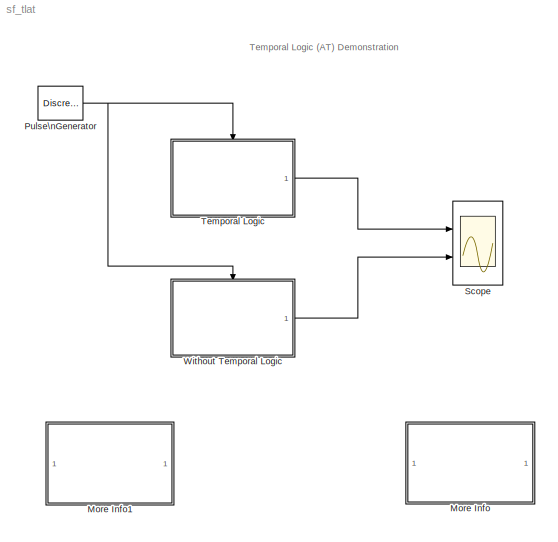
MODEL sf_tlat
KIND model
BLOCK [SubSystem] More Info
  MaskDisplay = disp('Double click\\nhere for\\ninformation on\\nthis demonstration')
  MaskIconFrame = on
  MaskIconOpaque = on
  MaskIconRotate = none
  MaskIconUnits = autoscale
  MinAlgLoopOccurrences = off
  Ports = []
  PropExecContextAcrossSSBoundary = on
  RTWSystemCode = Auto
  TreatAsAtomicUnit = off
BLOCK [SubSystem] More Info1
  MaskDisplay = disp('Double click\\nhere for<path> Help')
  MaskIconFrame = on
  MaskIconOpaque = on
  MaskIconRotate = none
  MaskIconUnits = autoscale
  MinAlgLoopOccurrences = off
  OpenFcn = simcad(bdroot);
  Ports = []
  PropExecContextAcrossSSBoundary = on
  RTWSystemCode = Auto
  TreatAsAtomicUnit = off
BLOCK [DiscretePulseGenerator] Pulse\nGenerator
  Period = 1
  Ports = [0, 1]
  PulseType = Time based
  PulseWidth = 50
BLOCK [Scope] Scope
  DataFormat = StructureWithTime
  NumInputPorts = 2
  Ports = [2]
  TimeRange = 100
  YMax = 1.5~1.5
  YMin = -1.5~-1.5
  ZoomMode = xonly
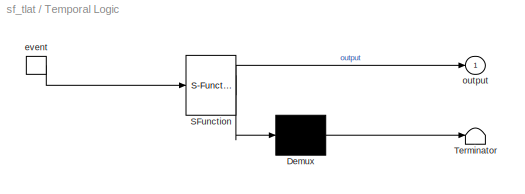
BLOCK [SubSystem] Temporal Logic
  MaskDescription = Stateflow diagram
  MaskDisplay = plot(sf('Private','sfblk','xIcon'),sf('Private','sfblk','yIcon'));text(0.5,0,sf('Private', 'sfblk', 'tIcon'),'HorizontalAl','Center','VerticalAl','Bottom');
  MaskIconFrame = off
  MaskIconOpaque = off
  MaskIconRotate = none
  MaskIconUnits = autoscale
  MaskSelfModifiable = on
  MaskType = Stateflow
  MinAlgLoopOccurrences = off
  Ports = [0, 1, 0, 1]
  PropExecContextAcrossSSBoundary = on
  RTWSystemCode = Auto
  TreatAsAtomicUnit = on
BLOCK [Demux] Temporal Logic/ Demux 
  Outputs = 1
  Ports = [1, 1]
BLOCK [S-Function] Temporal Logic/ SFunction 
  FunctionName = sf_sfun
  PortCounts = [1 2]
  Ports = [1, 2]
  Tag = Stateflow S-Function sf_tlat 1
BLOCK [Terminator] Temporal Logic/ Terminator 
BLOCK [TriggerPort] Temporal Logic/event
  Ports = [0, 1]
  ShowOutputPort = on
BLOCK [Outport] Temporal Logic/output
  IconDisplay = Port number
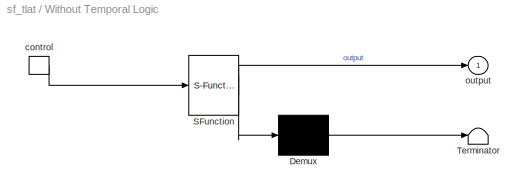
BLOCK [SubSystem] Without Temporal Logic
  MaskDescription = Stateflow diagram
  MaskDisplay = plot(sf('Private','sfblk','xIcon'),sf('Private','sfblk','yIcon'));text(0.5,0,sf('Private', 'sfblk', 'tIcon'),'HorizontalAl','Center','VerticalAl','Bottom');
  MaskIconFrame = off
  MaskIconOpaque = off
  MaskIconRotate = none
  MaskIconUnits = autoscale
  MaskSelfModifiable = on
  MaskType = Stateflow
  MinAlgLoopOccurrences = off
  Ports = [0, 1, 0, 1]
  PropExecContextAcrossSSBoundary = on
  RTWSystemCode = Auto
  TreatAsAtomicUnit = on
BLOCK [Demux] Without Temporal Logic/ Demux 
  Outputs = 1
  Ports = [1, 1]
BLOCK [S-Function] Without Temporal Logic/ SFunction 
  FunctionName = sf_sfun
  PortCounts = [1 2]
  Ports = [1, 2]
  Tag = Stateflow S-Function sf_tlat 2
BLOCK [Terminator] Without Temporal Logic/ Terminator 
BLOCK [TriggerPort] Without Temporal Logic/control
  Ports = [0, 1]
  ShowOutputPort = on
BLOCK [Outport] Without Temporal Logic/output
  IconDisplay = Port number
ANNOTATION (root): Temporal Logic (AT) Demonstration
ANNOTATION More Info: In this demo, we illustrate the advantage of using the AT function. In this demo, the AT function is\nused three times in the 'Temporal Logic' chart. After setting a value a=5, we use the AT function to \nchange the final output in the chart. On the 5th ('a') event, we set the output to 1; on the 10th ('2*a') \nevent, we set the output to 0; and finally, on the 30th ('6*a') event we set the output...<+451ch>
ANNOTATION More Info: Temporal Logic using the AT function
ANNOTATION More Info: \n
NET Pulse\nGenerator:1 -> Temporal Logic:trigger, Without Temporal Logic:trigger
LINE Temporal Logic/ Demux :1 -> Temporal Logic/ Terminator :1
LINE Temporal Logic/ SFunction :1 -> Temporal Logic/ Demux :1
LINE Temporal Logic/ SFunction :2 -> Temporal Logic/output:1
LINE Temporal Logic/event:1 -> Temporal Logic/ SFunction :1
LINE Temporal Logic:1 -> Scope:1
LINE Without Temporal Logic/ Demux :1 -> Without Temporal Logic/ Terminator :1
LINE Without Temporal Logic/ SFunction :1 -> Without Temporal Logic/ Demux :1
LINE Without Temporal Logic/ SFunction :2 -> Without Temporal Logic/output:1
LINE Without Temporal Logic/control:1 -> Without Temporal Logic/ SFunction :1
LINE Without Temporal Logic:1 -> Scope:2
note: NET lines group one-source signal fan-out (src -> all destinations, sorted); 1:1 wires keep LINE
CHART Temporal Logic states=1 transitions=3
  STATE_LABEL 'State\\na=5;\\non at(a,event):output=1;\\non at(2*a,event):output=0;'
CHART Without Temporal Logic states=3 transitions=7
  STATE_LABEL 'A\\nen: count = 1;'
  STATE_LABEL 'B\\nen:count=a+1;'
  STATE_LABEL 'C\\nen:count=2*a+1;'
note: 1 file-system path scrubbed to <path> (not preserved elsewhere — flat text is the only slx artifact)
